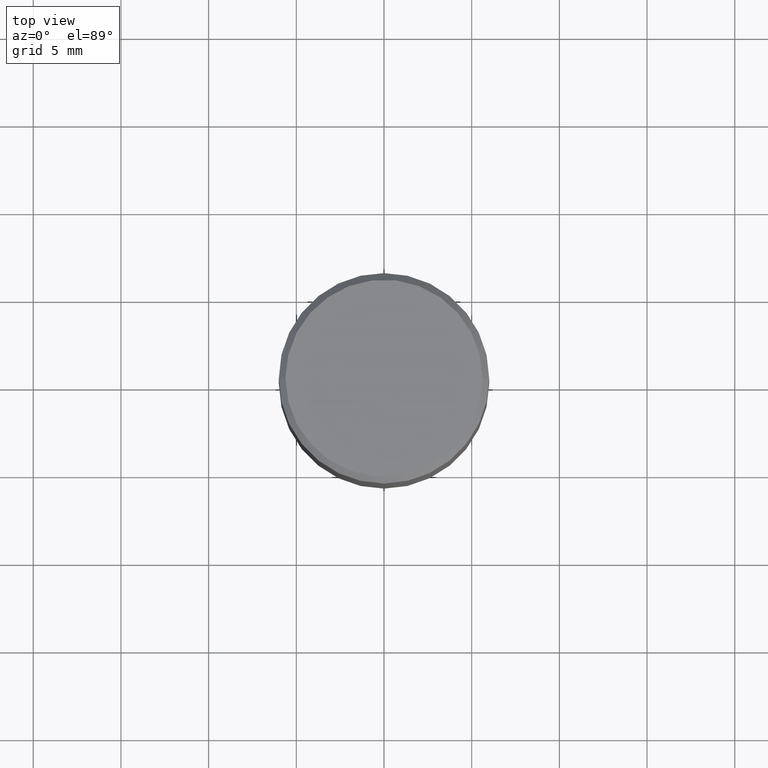
[diagram: clean part render]
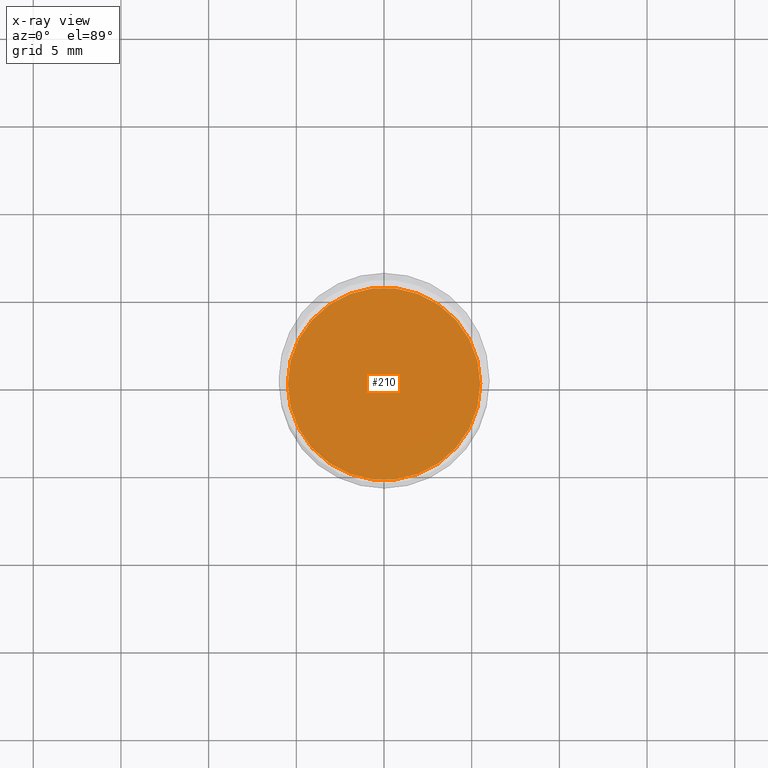
[diagram: x-ray — body ghosted, one internal face saturated and labeled with its STEP entity id]
A machine part, top view, then the same camera in x-ray: the body is ghosted and one INTERNAL B-rep face — a face not visible from any outside direction — is saturated and labeled: STEP entity #210.
In plain terms, the highlighted planar face has unit normal (-0, 0, 1).
Its self-contained STEP definition (entity closure, byte-faithful):
#40 = CARTESIAN_POINT ( 'NONE',  ( 0.2160500000000000198, -4.134263053324163313E-15, -0.7519999999999998908 ) ) ;
#61 = EDGE_LOOP ( 'NONE', ( #363, #345 ) ) ;
#66 = DIRECTION ( 'NONE',  ( -2.445468806185136597E-29, 3.491481338843145583E-15, 1.000000000000000000 ) ) ;
#107 = FACE_OUTER_BOUND ( 'NONE', #61, .T. ) ;
#120 = AXIS2_PLACEMENT_3D ( 'NONE', #459, #211, #177 ) ;
#147 = DIRECTION ( 'NONE',  ( -2.445468806185136597E-29, 3.491481338843145583E-15, 1.000000000000000000 ) ) ;
#152 = CIRCLE ( 'NONE', #242, 0.2160500000000000198 ) ;
#177 = DIRECTION ( 'NONE',  ( 1.000000000000000000, -6.982962677686265922E-15, 4.876176775795935793E-29 ) ) ;
#179 = CIRCLE ( 'NONE', #349, 0.2160500000000000198 ) ;
#210 = ADVANCED_FACE ( 'NONE', ( #107 ), #328, .F. ) ;
#211 = DIRECTION ( 'NONE',  ( -2.438088387897960049E-29, 3.491481338843145188E-15, 1.000000000000000000 ) ) ;
#212 = DIRECTION ( 'NONE',  ( 1.000000000000000000, -6.982962677686266711E-15, 0.000000000000000000 ) ) ;
#214 = EDGE_CURVE ( 'NONE', #236, #399, #152, .T. ) ;
#236 = VERTEX_POINT ( 'NONE', #352 ) ;
#239 = EDGE_CURVE ( 'NONE', #399, #236, #179, .T. ) ;
#242 = AXIS2_PLACEMENT_3D ( 'NONE', #419, #147, #252 ) ;
#252 = DIRECTION ( 'NONE',  ( 1.000000000000000000, -6.982962677686266711E-15, 0.000000000000000000 ) ) ;
#253 = CARTESIAN_POINT ( 'NONE',  ( 1.838992542251222532E-29, -2.625593966810045103E-15, -0.7519999999999998908 ) ) ;
#328 = PLANE ( 'NONE',  #120 ) ;
#345 = ORIENTED_EDGE ( 'NONE', *, *, #214, .F. ) ;
#349 = AXIS2_PLACEMENT_3D ( 'NONE', #253, #66, #212 ) ;
#352 = CARTESIAN_POINT ( 'NONE',  ( -0.2160500000000000198, -1.087817159026237112E-15, -0.7519999999999998908 ) ) ;
#363 = ORIENTED_EDGE ( 'NONE', *, *, #239, .F. ) ;
#399 = VERTEX_POINT ( 'NONE', #40 ) ;
#419 = CARTESIAN_POINT ( 'NONE',  ( 1.838992542251222532E-29, -2.625593966810045103E-15, -0.7519999999999998908 ) ) ;
#459 = CARTESIAN_POINT ( 'NONE',  ( 1.838992542251222813E-29, -2.625593966810045497E-15, -0.7520000000000001128 ) ) ;